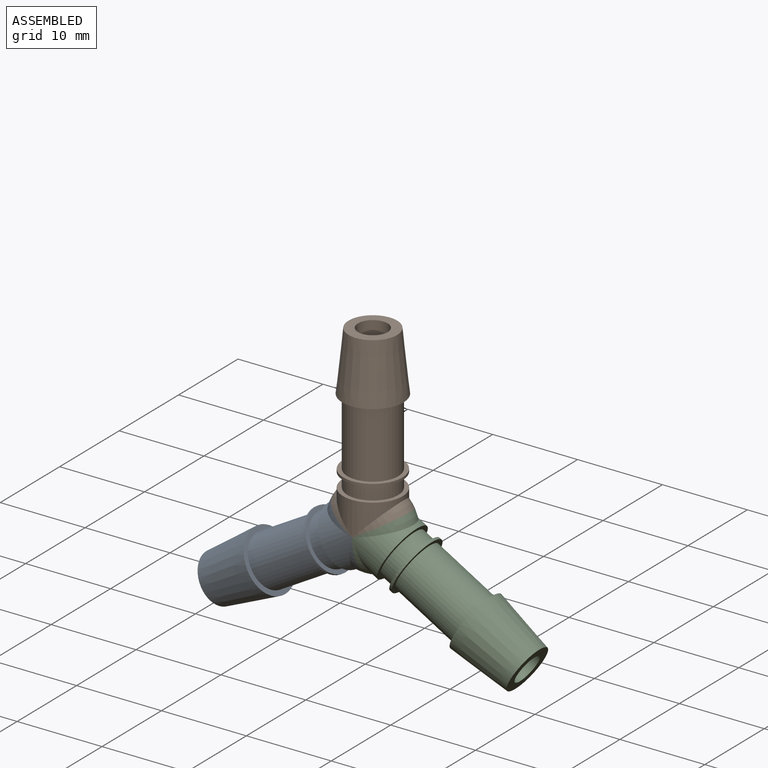
[diagram: assembled view]
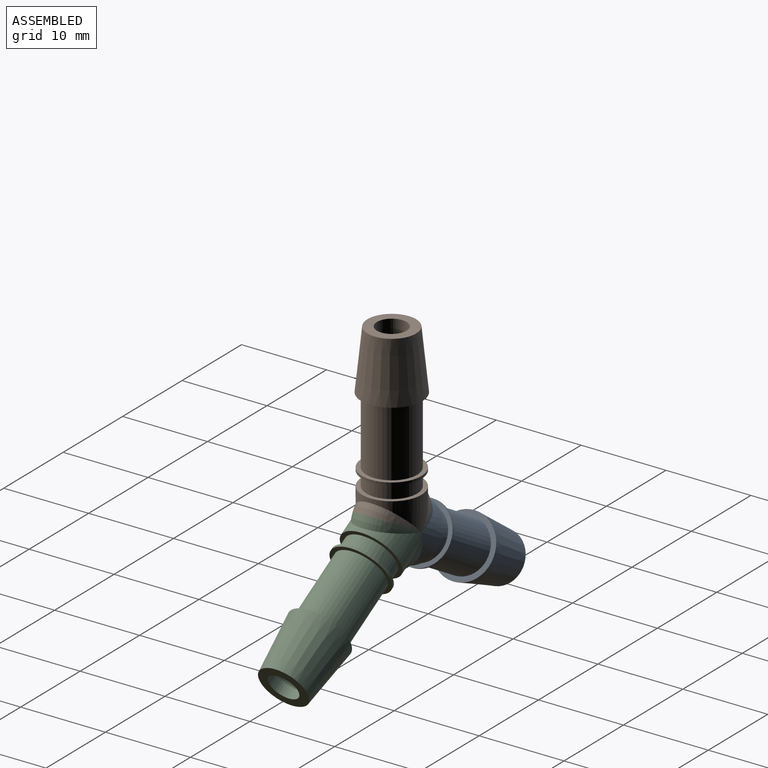
[diagram: assembled view, second angle]
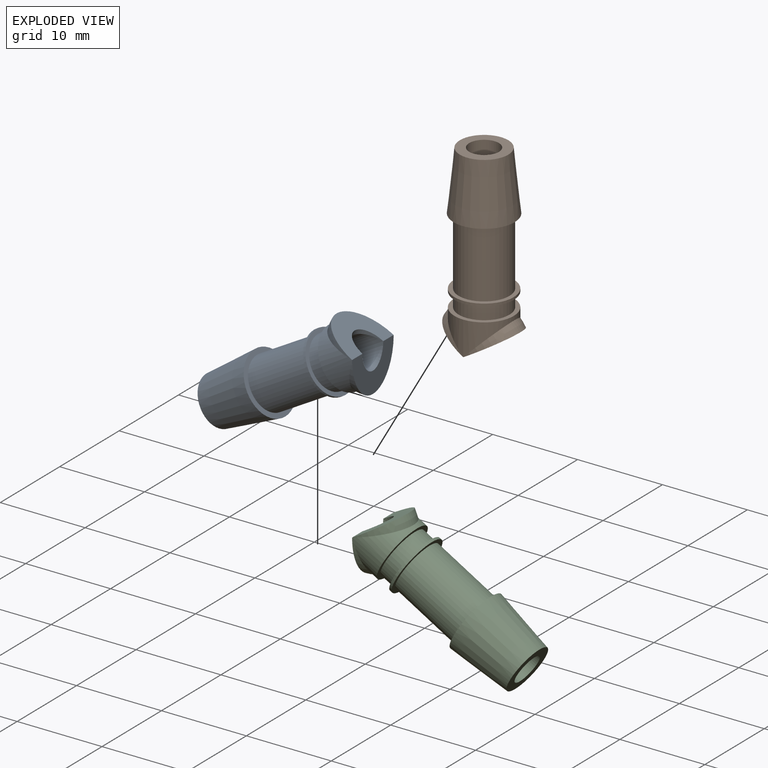
[diagram: exploded view]
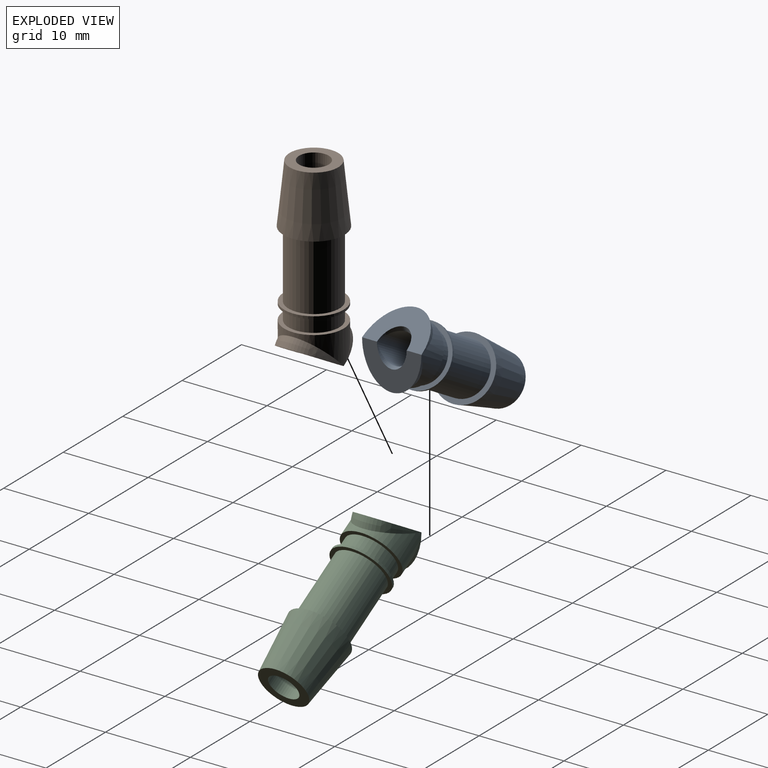
[diagram: exploded view, second angle]
ASSEMBLY  parts=3 mates=2
PART A: 17 faces, bbox 8.6x7.2x21 mm
  f0: cylinder r=1.75mm len=21mm, axis (0,0,-1), area 218.7mm2, adj f3,f11,f14
  f1: cylinder r=3.5mm len=7mm, axis (0,0,1), area 39mm2, adj f10,f12,f15
  f2: cone r=3.6mm half-angle=6deg, axis (0,0,-1), area 142.9mm2, adj f3,f4
  f3: plane 5.73x5.73mm, normal (0,0,1), area 16.2mm2, adj f0,f2
  f4: plane 7.2x7.2mm, normal (0,0,-1), area 12.4mm2, adj f2,f5
  f5: cylinder r=3mm len=8mm, axis (0,0,1), area 150.8mm2, adj f4,f8
  f6: cylinder r=3.5mm len=7mm, axis (0,0,1), area 6.6mm2, adj f7,f8
  f7: plane 7x7mm, normal (0,0,-1), area 10.2mm2, adj f6,f9
  f8: plane 7x7mm, normal (0,0,1), area 10.2mm2, adj f5,f6
  f9: cylinder r=3mm len=6mm, axis (0,0,1), area 32mm2, adj f7,f10
  f10: plane 7x7mm, normal (0,0,1), area 10.2mm2, adj f1,f9
  f11: revolved ~3.5x2.14mm, area 2.6mm2, adj f0,f13
  f12: revolved ~7x4.29mm, area 10.4mm2, adj f1,f13
  f13: plane 7x4.29mm, normal (-0.5,0,-0.87), area 20.4mm2, adj f11,f12,f16
  f14: revolved ~3.5x2.14mm, area 2.6mm2, adj f0,f16
  f15: revolved ~7x4.29mm, area 10.4mm2, adj f1,f16
  f16: plane 7x4.29mm, normal (0.5,0,-0.87), area 20.4mm2, adj f13,f14,f15
PART B: same geometry as A
PART C: same geometry as A
PLACE A rot(axis=(0.87,0,-0.5),180deg) t=(-12.8,2.25,-17.92)mm
PLACE B t=(-0.67,2.25,3.08)mm fixed
PLACE C rot(axis=(0.87,0,0.5),180deg) t=(11.45,2.25,-17.92)mm
MATE fastened C.f13 <-> A.f16  axis (-1,0,0) through (-0.67,2.25,-13.37)mm
MATE fastened B.f13 <-> A.f13  axis (-0.5,0,-0.87) through (-2.79,2.25,-9.69)mm
